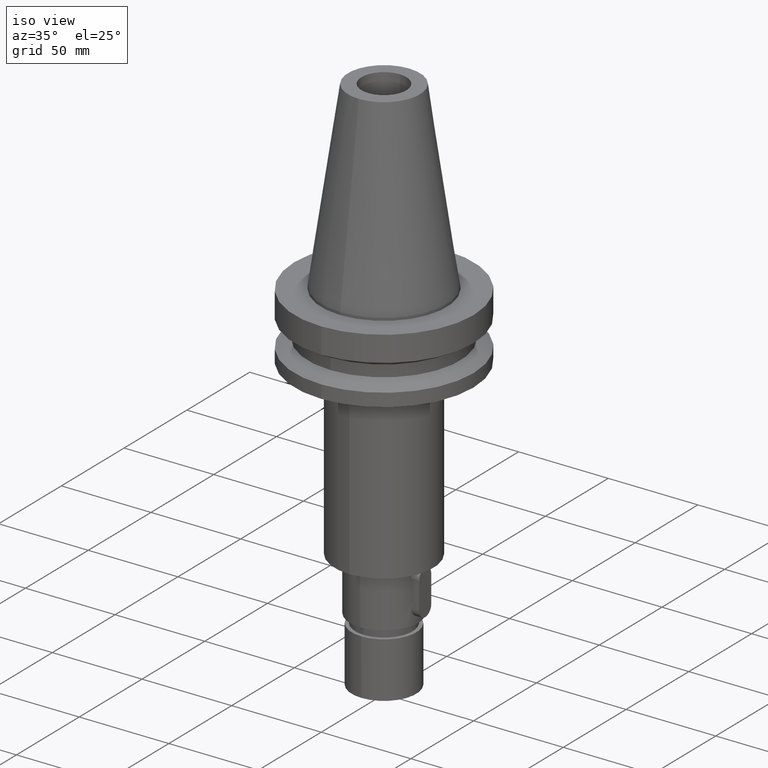
[diagram: clean part render]
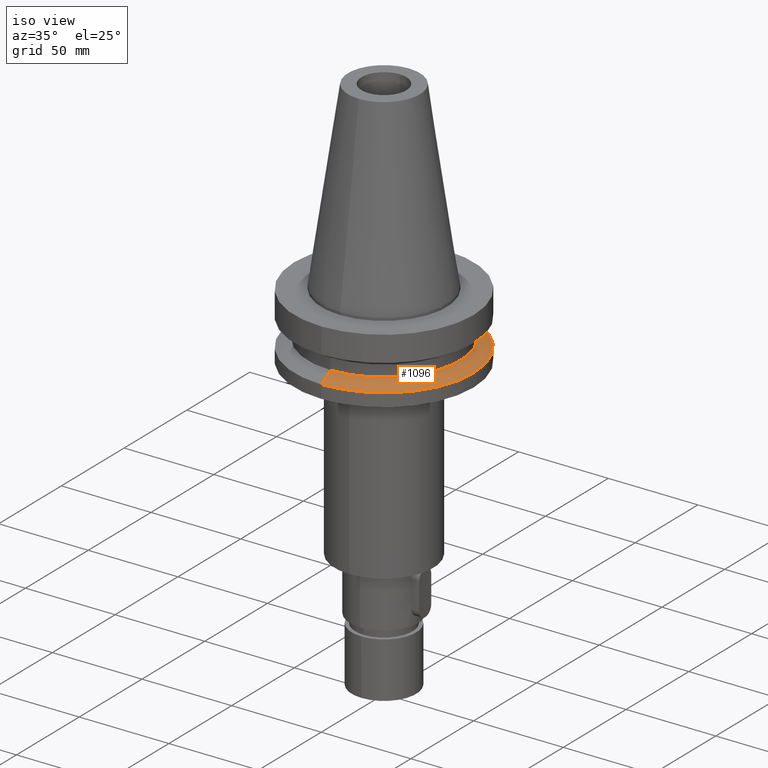
[diagram: same view with one face highlighted and labeled with its STEP entity id]
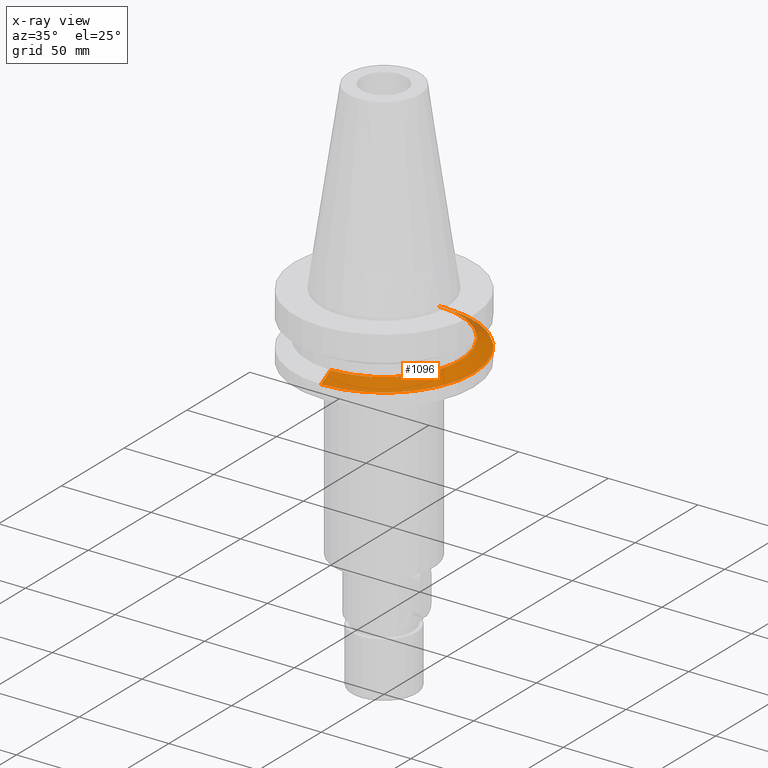
[diagram: x-ray of the same camera — body ghosted, the highlighted face saturated]
A machine part, iso view. The second image highlights one B-rep face of the part: STEP entity #1096.
The next image is the same camera in x-ray: the body ghosted, the highlighted face saturated — about 5% of this face is hidden behind the body in this view.
In plain terms, the highlighted conical surface has half-angle 60 deg.
Its self-contained STEP definition (entity closure, byte-faithful):
#284=DIRECTION('',(0.E0,-8.660254037845E-1,-4.999999999999E-1));
#285=VECTOR('',#284,8.660254037843E0);
#286=CARTESIAN_POINT('',(0.E0,-4.25E1,-2.640718074535E1));
#287=LINE('',#286,#285);
#299=DIRECTION('',(0.E0,8.660254037845E-1,-4.999999999999E-1));
#300=VECTOR('',#299,8.660254037843E0);
#301=CARTESIAN_POINT('',(0.E0,4.25E1,-2.640718074535E1));
#302=LINE('',#301,#300);
#306=CARTESIAN_POINT('',(0.E0,0.E0,-3.073730776427E1));
#307=DIRECTION('',(0.E0,0.E0,-1.E0));
#308=DIRECTION('',(0.E0,1.E0,0.E0));
#309=AXIS2_PLACEMENT_3D('',#306,#307,#308);
#314=CARTESIAN_POINT('',(0.E0,0.E0,-2.640718074535E1));
#315=DIRECTION('',(0.E0,0.E0,1.E0));
#316=DIRECTION('',(0.E0,-1.E0,0.E0));
#317=AXIS2_PLACEMENT_3D('',#314,#315,#316);
#746=CARTESIAN_POINT('',(0.E0,4.25E1,-2.640718074535E1));
#747=VERTEX_POINT('',#746);
#748=CARTESIAN_POINT('',(1.040949779275E-14,-4.25E1,-2.640718074535E1));
#749=VERTEX_POINT('',#748);
#750=CARTESIAN_POINT('',(0.E0,5.E1,-3.073730776427E1));
#751=VERTEX_POINT('',#750);
#752=CARTESIAN_POINT('',(0.E0,-5.E1,-3.073730776427E1));
#753=VERTEX_POINT('',#752);
#1084=CARTESIAN_POINT('',(0.E0,0.E0,-2.857224425481E1));
#1085=DIRECTION('',(0.E0,0.E0,-1.E0));
#1086=DIRECTION('',(0.E0,-1.E0,0.E0));
#1087=AXIS2_PLACEMENT_3D('',#1084,#1085,#1086);
#1088=CONICAL_SURFACE('',#1087,4.625E1,6.E1);
#1089=ORIENTED_EDGE('',*,*,#1074,.T.);
#1091=ORIENTED_EDGE('',*,*,#1090,.T.);
#1092=ORIENTED_EDGE('',*,*,#1077,.F.);
#1093=ORIENTED_EDGE('',*,*,#1048,.T.);
#1094=EDGE_LOOP('',(#1089,#1091,#1092,#1093));
#1095=FACE_OUTER_BOUND('',#1094,.F.);
#310=CIRCLE('',#309,5.E1);
#318=CIRCLE('',#317,4.25E1);
#1048=EDGE_CURVE('',#749,#747,#318,.T.);
#1074=EDGE_CURVE('',#747,#751,#302,.T.);
#1077=EDGE_CURVE('',#749,#753,#287,.T.);
#1090=EDGE_CURVE('',#751,#753,#310,.T.);
#1096=ADVANCED_FACE('',(#1095),#1088,.T.);